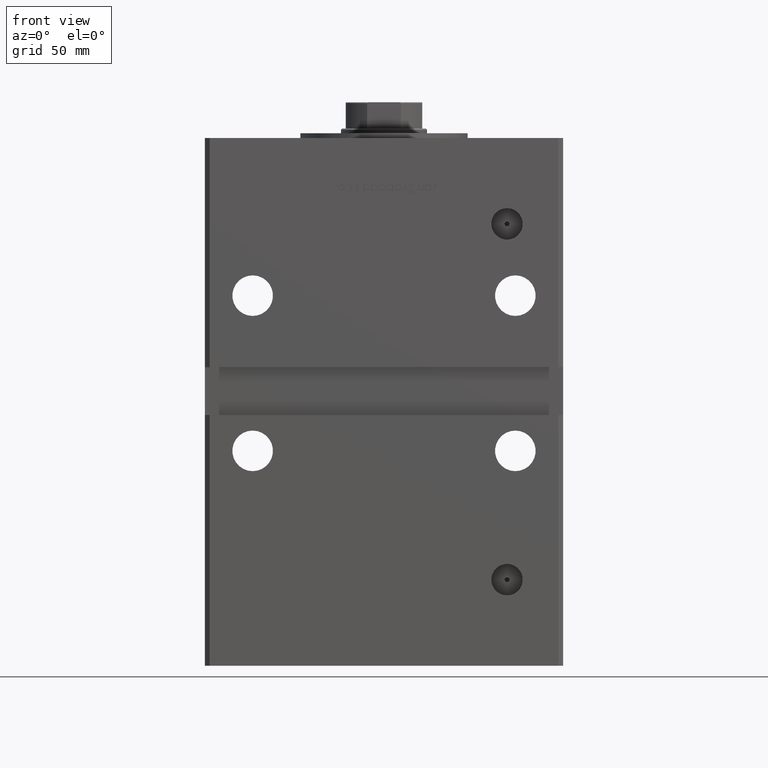
[diagram: clean part render]
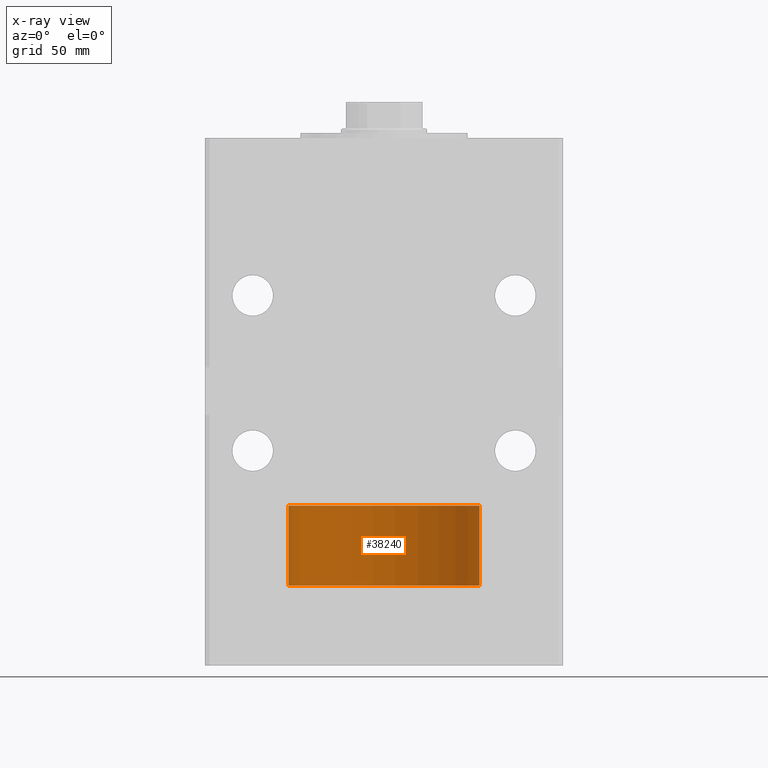
[diagram: x-ray — body ghosted, one internal face saturated and labeled with its STEP entity id]
A machine part, front view, then the same camera in x-ray: the body is ghosted and one INTERNAL B-rep face — a face not visible from any outside direction — is saturated and labeled: STEP entity #38240.
In plain terms, the highlighted cylindrical surface (partial cylindrical patch) has radius 40 mm, axis along (-0, -0, -1).
Its self-contained STEP definition (entity closure, byte-faithful):
#310 = VERTEX_POINT ( 'NONE', #19849 ) ;
#2662 = CARTESIAN_POINT ( 'NONE',  ( 40.00000000000000000, 4.898587196589413026E-15, 33.50000000000000000 ) ) ;
#3094 = VECTOR ( 'NONE', #39446, 1000.000000000000000 ) ;
#5875 = CARTESIAN_POINT ( 'NONE',  ( 40.00000000000000000, 4.898587196589413026E-15, 0.000000000000000000 ) ) ;
#7612 = DIRECTION ( 'NONE',  ( 1.000000000000000000, 0.000000000000000000, 0.000000000000000000 ) ) ;
#8648 = DIRECTION ( 'NONE',  ( 0.000000000000000000, 0.000000000000000000, 1.000000000000000000 ) ) ;
#11399 = FACE_OUTER_BOUND ( 'NONE', #23842, .T. ) ;
#11749 = CARTESIAN_POINT ( 'NONE',  ( 0.000000000000000000, 0.000000000000000000, 0.000000000000000000 ) ) ;
#13647 = VERTEX_POINT ( 'NONE', #52841 ) ;
#13872 = EDGE_CURVE ( 'NONE', #29050, #13647, #14481, .T. ) ;
#14207 = AXIS2_PLACEMENT_3D ( 'NONE', #48891, #19974, #36560 ) ;
#14237 = EDGE_CURVE ( 'NONE', #43184, #310, #47893, .T. ) ;
#14481 = CIRCLE ( 'NONE', #26462, 40.00000000000000000 ) ;
#18569 = ORIENTED_EDGE ( 'NONE', *, *, #33223, .T. ) ;
#19849 = CARTESIAN_POINT ( 'NONE',  ( -40.00000000000000000, 0.000000000000000000, 33.50000000000000000 ) ) ;
#19974 = DIRECTION ( 'NONE',  ( -0.000000000000000000, -0.000000000000000000, -1.000000000000000000 ) ) ;
#23486 = VECTOR ( 'NONE', #43920, 1000.000000000000000 ) ;
#23842 = EDGE_LOOP ( 'NONE', ( #37794, #18569, #29070, #33597 ) ) ;
#24857 = CARTESIAN_POINT ( 'NONE',  ( 40.00000000000000000, 4.898587196589413026E-15, 33.50000000000000000 ) ) ;
#26462 = AXIS2_PLACEMENT_3D ( 'NONE', #11749, #28092, #44434 ) ;
#26777 = LINE ( 'NONE', #2662, #23486 ) ;
#28092 = DIRECTION ( 'NONE',  ( 0.000000000000000000, 0.000000000000000000, 1.000000000000000000 ) ) ;
#29050 = VERTEX_POINT ( 'NONE', #5875 ) ;
#29070 = ORIENTED_EDGE ( 'NONE', *, *, #13872, .T. ) ;
#31750 = CYLINDRICAL_SURFACE ( 'NONE', #14207, 40.00000000000000000 ) ;
#32764 = CARTESIAN_POINT ( 'NONE',  ( 0.000000000000000000, 0.000000000000000000, 33.50000000000000000 ) ) ;
#33223 = EDGE_CURVE ( 'NONE', #43184, #29050, #26777, .T. ) ;
#33597 = ORIENTED_EDGE ( 'NONE', *, *, #38431, .F. ) ;
#36560 = DIRECTION ( 'NONE',  ( -1.000000000000000000, 0.000000000000000000, 0.000000000000000000 ) ) ;
#37794 = ORIENTED_EDGE ( 'NONE', *, *, #14237, .F. ) ;
#37868 = LINE ( 'NONE', #46175, #3094 ) ;
#38240 = ADVANCED_FACE ( 'NONE', ( #11399 ), #31750, .T. ) ;
#38431 = EDGE_CURVE ( 'NONE', #310, #13647, #37868, .T. ) ;
#39446 = DIRECTION ( 'NONE',  ( -0.000000000000000000, -0.000000000000000000, -1.000000000000000000 ) ) ;
#43184 = VERTEX_POINT ( 'NONE', #24857 ) ;
#43920 = DIRECTION ( 'NONE',  ( -0.000000000000000000, -0.000000000000000000, -1.000000000000000000 ) ) ;
#44434 = DIRECTION ( 'NONE',  ( 1.000000000000000000, 0.000000000000000000, 0.000000000000000000 ) ) ;
#46175 = CARTESIAN_POINT ( 'NONE',  ( -40.00000000000000000, 0.000000000000000000, 33.50000000000000000 ) ) ;
#47893 = CIRCLE ( 'NONE', #51292, 40.00000000000000000 ) ;
#48891 = CARTESIAN_POINT ( 'NONE',  ( 0.000000000000000000, 0.000000000000000000, 33.50000000000000000 ) ) ;
#51292 = AXIS2_PLACEMENT_3D ( 'NONE', #32764, #8648, #7612 ) ;
#52841 = CARTESIAN_POINT ( 'NONE',  ( -40.00000000000000000, 0.000000000000000000, 0.000000000000000000 ) ) ;